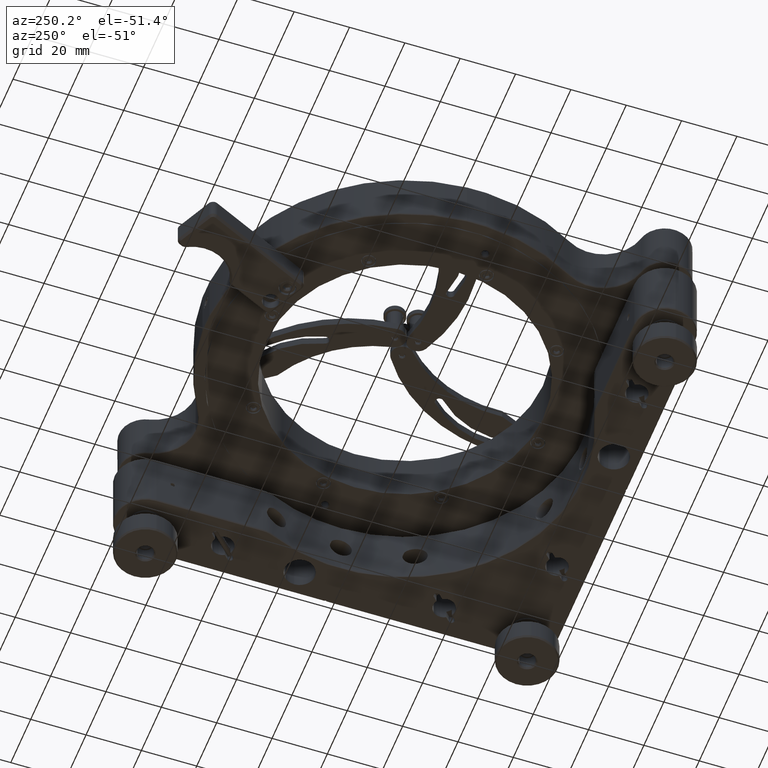
[diagram: clean part render]
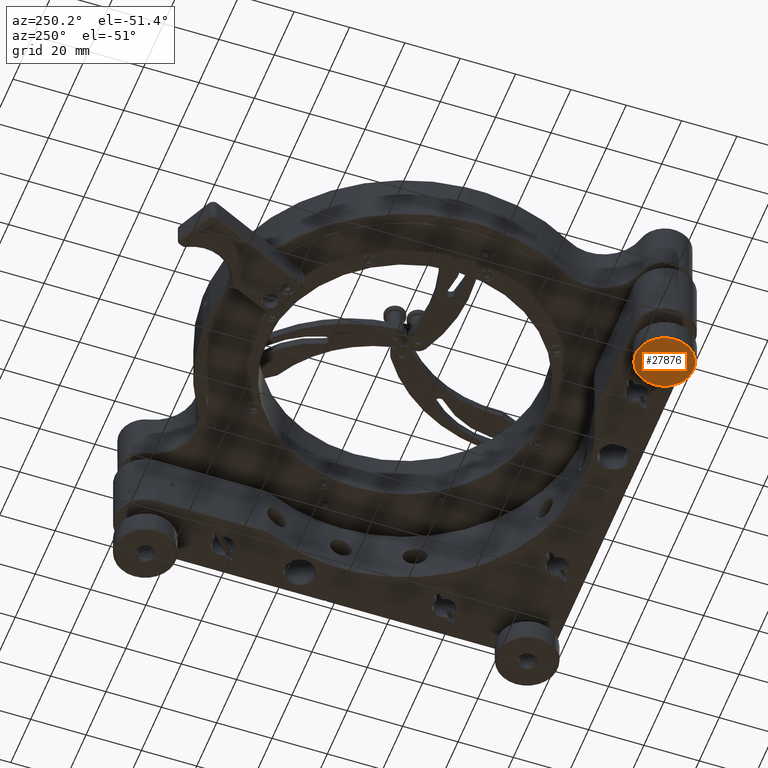
[diagram: same view with one face highlighted and labeled with its STEP entity id]
A machine part, auxiliary view. The second image highlights one B-rep face of the part: STEP entity #27876.
In plain terms, the highlighted planar face has unit normal (-0, 0, 1).
Its self-contained STEP definition (entity closure, byte-faithful):
#2239 = CARTESIAN_POINT ( 'NONE',  ( -36.13311552716503172, -51.28478970307667595, 40.58081318928080350 ) ) ;
#3689 = VERTEX_POINT ( 'NONE', #11611 ) ;
#4197 = VERTEX_POINT ( 'NONE', #23864 ) ;
#4357 = CARTESIAN_POINT ( 'NONE',  ( -32.63325637517267808, -51.25339040029059845, 40.58081318928080350 ) ) ;
#4453 = VERTEX_POINT ( 'NONE', #32155 ) ;
#4959 = ORIENTED_EDGE ( 'NONE', *, *, #25647, .T. ) ;
#5246 = AXIS2_PLACEMENT_3D ( 'NONE', #16625, #39092, #7429 ) ;
#7429 = DIRECTION ( 'NONE',  ( -0.9999597577120973302, -0.008971229367451420689, 0.000000000000000000 ) ) ;
#7871 = CIRCLE ( 'NONE', #31174, 3.500000000000016431 ) ;
#7920 = DIRECTION ( 'NONE',  ( -0.9999597577120973302, -0.008971229367451493547, -9.695505242856669895E-50 ) ) ;
#9529 = AXIS2_PLACEMENT_3D ( 'NONE', #2239, #18311, #18922 ) ;
#11569 = DIRECTION ( 'NONE',  ( -0.9999597577120973302, -0.008971229367452052128, 0.000000000000000000 ) ) ;
#11611 = CARTESIAN_POINT ( 'NONE',  ( -46.63269298314207845, -51.37898761143491555, 40.58081318928080350 ) ) ;
#13210 = CARTESIAN_POINT ( 'NONE',  ( -36.13311552716503172, -51.28478970307667595, 40.58081318928080350 ) ) ;
#16625 = CARTESIAN_POINT ( 'NONE',  ( -36.13311552716503172, -51.28478970307667595, 40.58081318928080350 ) ) ;
#17417 = CARTESIAN_POINT ( 'NONE',  ( -36.13311552716503172, -51.28478970307667595, 40.58081318928080350 ) ) ;
#18311 = DIRECTION ( 'NONE',  ( 9.708507141352915573E-50, -1.405738883737467706E-50, -1.000000000000000000 ) ) ;
#18823 = EDGE_LOOP ( 'NONE', ( #40915, #37379 ) ) ;
#18922 = DIRECTION ( 'NONE',  ( -0.9999597577120973302, -0.008971229367451420689, 0.000000000000000000 ) ) ;
#19690 = EDGE_CURVE ( 'NONE', #3689, #4453, #37854, .T. ) ;
#23526 = EDGE_LOOP ( 'NONE', ( #32953, #4959 ) ) ;
#23764 = DIRECTION ( 'NONE',  ( -9.708507141352911775E-50, 1.405738883737467943E-50, 1.000000000000000000 ) ) ;
#23864 = CARTESIAN_POINT ( 'NONE',  ( -39.63297467915739247, -51.31618900586276055, 40.58081318928080350 ) ) ;
#25647 = EDGE_CURVE ( 'NONE', #4453, #3689, #30840, .T. ) ;
#25977 = AXIS2_PLACEMENT_3D ( 'NONE', #13210, #26340, #35899 ) ;
#26340 = DIRECTION ( 'NONE',  ( -9.708507141352915573E-50, 1.405738883737467706E-50, 1.000000000000000000 ) ) ;
#27289 = CIRCLE ( 'NONE', #25977, 3.500000000000016431 ) ;
#27754 = VERTEX_POINT ( 'NONE', #4357 ) ;
#27876 = ADVANCED_FACE ( 'NONE', ( #38966, #39173 ), #39782, .F. ) ;
#30555 = DIRECTION ( 'NONE',  ( -9.708507141352915573E-50, 1.405738883737467706E-50, 1.000000000000000000 ) ) ;
#30840 = CIRCLE ( 'NONE', #9529, 10.50000000000001421 ) ;
#31174 = AXIS2_PLACEMENT_3D ( 'NONE', #17417, #30555, #11569 ) ;
#32155 = CARTESIAN_POINT ( 'NONE',  ( -25.63353807118799210, -51.19059179471843635, 40.58081318928080350 ) ) ;
#32393 = AXIS2_PLACEMENT_3D ( 'NONE', #40186, #23764, #7920 ) ;
#32953 = ORIENTED_EDGE ( 'NONE', *, *, #19690, .T. ) ;
#35899 = DIRECTION ( 'NONE',  ( -0.9999597577120973302, -0.008971229367452052128, 0.000000000000000000 ) ) ;
#36956 = EDGE_CURVE ( 'NONE', #4197, #27754, #7871, .T. ) ;
#37379 = ORIENTED_EDGE ( 'NONE', *, *, #36956, .T. ) ;
#37854 = CIRCLE ( 'NONE', #5246, 10.50000000000001421 ) ;
#38426 = EDGE_CURVE ( 'NONE', #27754, #4197, #27289, .T. ) ;
#38966 = FACE_BOUND ( 'NONE', #18823, .T. ) ;
#39092 = DIRECTION ( 'NONE',  ( 9.708507141352915573E-50, -1.405738883737467706E-50, -1.000000000000000000 ) ) ;
#39173 = FACE_OUTER_BOUND ( 'NONE', #23526, .T. ) ;
#39782 = PLANE ( 'NONE',  #32393 ) ;
#40186 = CARTESIAN_POINT ( 'NONE',  ( -36.13311552716503172, -51.28478970307667595, 40.58081318928080350 ) ) ;
#40915 = ORIENTED_EDGE ( 'NONE', *, *, #38426, .T. ) ;